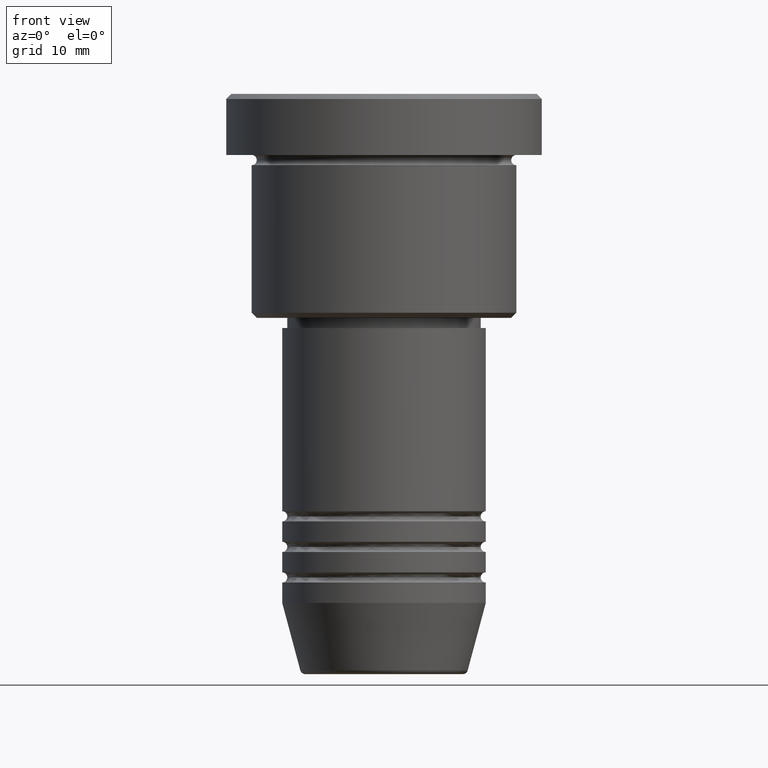
[diagram: clean part render]
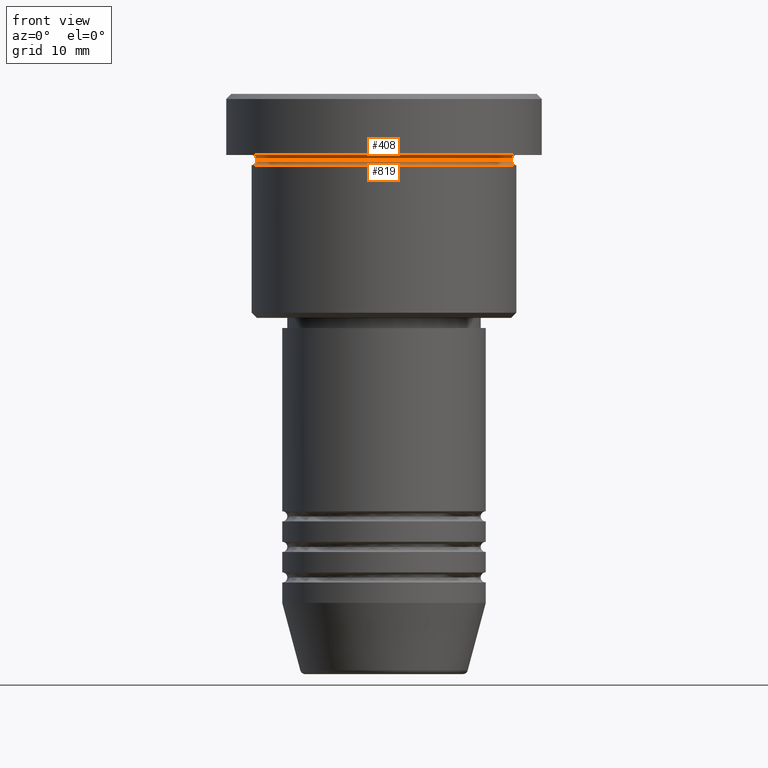
[diagram: same view with one multi-face feature highlighted, each face labeled with its STEP entity id]
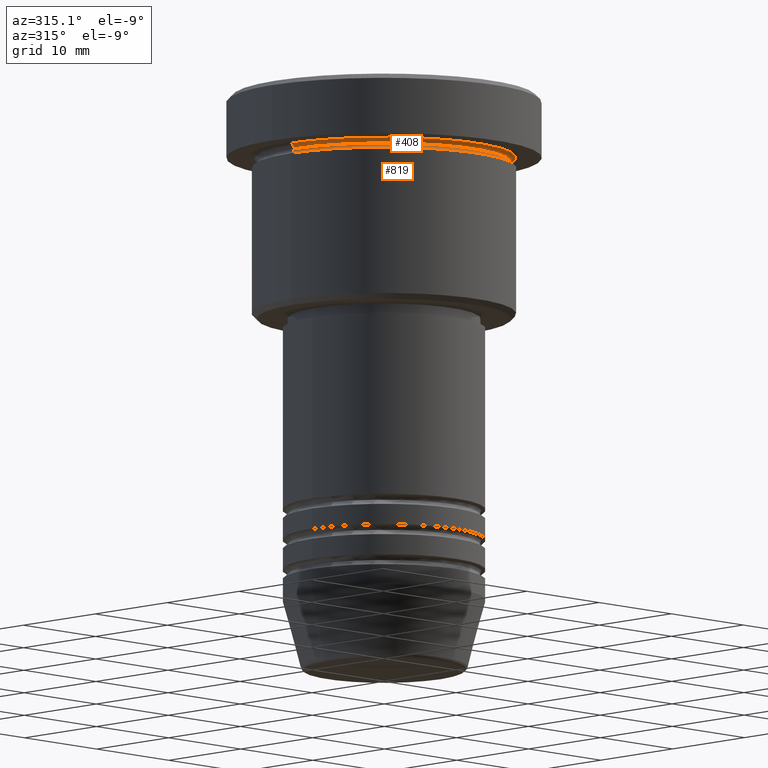
[diagram: same view with one multi-face feature highlighted, each face labeled with its STEP entity id]
A machine part, front view. The highlighted faces form ONE feature: a constant-radius fillet chain: 2 tangent blend faces with common blend radius 0.5 mm. The faces share edges in the B-rep.
A second angle (auxiliary view) of the same feature is appended — it is thin or edge-on in the first view.
Their STEP definitions:
[1] entity #819 (Torus):
#34 = DIRECTION ( 'NONE',  ( -1.000000000000000000, 1.224646799147353454E-16, 0.000000000000000000 ) ) ;
#145 = CARTESIAN_POINT ( 'NONE',  ( 0.000000000000000000, 0.000000000000000000, -6.999999999999995559 ) ) ;
#152 = AXIS2_PLACEMENT_3D ( 'NONE', #856, #833, #34 ) ;
#173 = CIRCLE ( 'NONE', #212, 12.49999999999999822 ) ;
#207 = CARTESIAN_POINT ( 'NONE',  ( 0.000000000000000000, 0.000000000000000000, -6.499999999999995559 ) ) ;
#212 = AXIS2_PLACEMENT_3D ( 'NONE', #755, #578, #477 ) ;
#257 = EDGE_CURVE ( 'NONE', #1182, #793, #1132, .T. ) ;
#292 = AXIS2_PLACEMENT_3D ( 'NONE', #532, #890, #689 ) ;
#323 = AXIS2_PLACEMENT_3D ( 'NONE', #207, #955, #378 ) ;
#336 = DIRECTION ( 'NONE',  ( 1.000000000000000000, 0.000000000000000000, 0.000000000000000000 ) ) ;
#378 = DIRECTION ( 'NONE',  ( 1.000000000000000000, 0.000000000000000000, 0.000000000000000000 ) ) ;
#394 = FACE_OUTER_BOUND ( 'NONE', #405, .T. ) ;
#405 = EDGE_LOOP ( 'NONE', ( #577, #680, #857, #759 ) ) ;
#477 = DIRECTION ( 'NONE',  ( 1.000000000000000000, 0.000000000000000000, 0.000000000000000000 ) ) ;
#505 = CARTESIAN_POINT ( 'NONE',  ( -12.49999999999999822, 1.561424668912875308E-15, -6.499999999999995559 ) ) ;
#525 = CIRCLE ( 'NONE', #1156, 13.00000000000000000 ) ;
#532 = CARTESIAN_POINT ( 'NONE',  ( 13.00000000000000000, 0.000000000000000000, -6.499999999999995559 ) ) ;
#570 = EDGE_CURVE ( 'NONE', #1094, #701, #655, .T. ) ;
#575 = EDGE_CURVE ( 'NONE', #793, #701, #525, .T. ) ;
#577 = ORIENTED_EDGE ( 'NONE', *, *, #799, .F. ) ;
#578 = DIRECTION ( 'NONE',  ( -0.000000000000000000, -0.000000000000000000, 1.000000000000000000 ) ) ;
#655 = CIRCLE ( 'NONE', #292, 0.5000000000000004441 ) ;
#669 = TOROIDAL_SURFACE ( 'NONE', #323, 13.00000000000000000, 0.5000000000000000000 ) ;
#680 = ORIENTED_EDGE ( 'NONE', *, *, #257, .T. ) ;
#689 = DIRECTION ( 'NONE',  ( 0.000000000000000000, 0.000000000000000000, -1.000000000000000000 ) ) ;
#701 = VERTEX_POINT ( 'NONE', #1093 ) ;
#755 = CARTESIAN_POINT ( 'NONE',  ( 0.000000000000000000, 0.000000000000000000, -6.499999999999995559 ) ) ;
#759 = ORIENTED_EDGE ( 'NONE', *, *, #570, .F. ) ;
#793 = VERTEX_POINT ( 'NONE', #951 ) ;
#799 = EDGE_CURVE ( 'NONE', #1182, #1094, #173, .T. ) ;
#819 = ADVANCED_FACE ( 'NONE', ( #394 ), #669, .F. ) ;
#833 = DIRECTION ( 'NONE',  ( 1.224646799147353207E-16, 1.000000000000000000, 0.000000000000000000 ) ) ;
#856 = CARTESIAN_POINT ( 'NONE',  ( -13.00000000000000000, 1.592040838891559095E-15, -6.499999999999995559 ) ) ;
#857 = ORIENTED_EDGE ( 'NONE', *, *, #575, .T. ) ;
#886 = DIRECTION ( 'NONE',  ( -0.000000000000000000, -0.000000000000000000, 1.000000000000000000 ) ) ;
#890 = DIRECTION ( 'NONE',  ( 0.000000000000000000, -1.000000000000000000, 0.000000000000000000 ) ) ;
#951 = CARTESIAN_POINT ( 'NONE',  ( -13.00000000000000000, 1.592040838891559095E-15, -6.999999999999995559 ) ) ;
#955 = DIRECTION ( 'NONE',  ( -0.000000000000000000, -0.000000000000000000, 1.000000000000000000 ) ) ;
#1093 = CARTESIAN_POINT ( 'NONE',  ( 13.00000000000000000, 0.000000000000000000, -6.999999999999995559 ) ) ;
#1094 = VERTEX_POINT ( 'NONE', #1118 ) ;
#1118 = CARTESIAN_POINT ( 'NONE',  ( 12.49999999999999822, 0.000000000000000000, -6.499999999999995559 ) ) ;
#1132 = CIRCLE ( 'NONE', #152, 0.5000000000000004441 ) ;
#1156 = AXIS2_PLACEMENT_3D ( 'NONE', #145, #886, #336 ) ;
#1182 = VERTEX_POINT ( 'NONE', #505 ) ;
[2] entity #408 (Torus):
#56 = ORIENTED_EDGE ( 'NONE', *, *, #799, .T. ) ;
#78 = DIRECTION ( 'NONE',  ( -1.000000000000000000, 0.000000000000000000, 0.000000000000000000 ) ) ;
#83 = ORIENTED_EDGE ( 'NONE', *, *, #357, .F. ) ;
#142 = DIRECTION ( 'NONE',  ( -0.000000000000000000, -0.000000000000000000, 1.000000000000000000 ) ) ;
#143 = ORIENTED_EDGE ( 'NONE', *, *, #427, .T. ) ;
#173 = CIRCLE ( 'NONE', #212, 12.49999999999999822 ) ;
#188 = DIRECTION ( 'NONE',  ( -1.000000000000000000, 0.000000000000000000, 0.000000000000000000 ) ) ;
#195 = CARTESIAN_POINT ( 'NONE',  ( 13.00000000000000000, 1.592040838891559095E-15, -5.999999999999994671 ) ) ;
#211 = TOROIDAL_SURFACE ( 'NONE', #542, 13.00000000000000000, 0.5000000000000000000 ) ;
#212 = AXIS2_PLACEMENT_3D ( 'NONE', #755, #578, #477 ) ;
#271 = CIRCLE ( 'NONE', #911, 0.5000000000000004441 ) ;
#289 = CARTESIAN_POINT ( 'NONE',  ( 0.000000000000000000, 0.000000000000000000, -6.499999999999995559 ) ) ;
#291 = AXIS2_PLACEMENT_3D ( 'NONE', #769, #142, #78 ) ;
#311 = CIRCLE ( 'NONE', #291, 13.00000000000000000 ) ;
#357 = EDGE_CURVE ( 'NONE', #389, #764, #311, .T. ) ;
#360 = DIRECTION ( 'NONE',  ( 0.000000000000000000, 0.000000000000000000, -1.000000000000000000 ) ) ;
#365 = DIRECTION ( 'NONE',  ( -1.000000000000000000, -1.224646799147353454E-16, 0.000000000000000000 ) ) ;
#389 = VERTEX_POINT ( 'NONE', #777 ) ;
#391 = EDGE_LOOP ( 'NONE', ( #56, #143, #83, #912 ) ) ;
#408 = ADVANCED_FACE ( 'NONE', ( #645 ), #211, .F. ) ;
#421 = CARTESIAN_POINT ( 'NONE',  ( -13.00000000000000000, 0.000000000000000000, -6.499999999999995559 ) ) ;
#427 = EDGE_CURVE ( 'NONE', #1094, #764, #880, .T. ) ;
#477 = DIRECTION ( 'NONE',  ( 1.000000000000000000, 0.000000000000000000, 0.000000000000000000 ) ) ;
#481 = AXIS2_PLACEMENT_3D ( 'NONE', #649, #919, #365 ) ;
#505 = CARTESIAN_POINT ( 'NONE',  ( -12.49999999999999822, 1.561424668912875308E-15, -6.499999999999995559 ) ) ;
#542 = AXIS2_PLACEMENT_3D ( 'NONE', #289, #360, #188 ) ;
#578 = DIRECTION ( 'NONE',  ( -0.000000000000000000, -0.000000000000000000, 1.000000000000000000 ) ) ;
#645 = FACE_OUTER_BOUND ( 'NONE', #391, .T. ) ;
#649 = CARTESIAN_POINT ( 'NONE',  ( 13.00000000000000000, 1.592040838891559095E-15, -6.499999999999995559 ) ) ;
#755 = CARTESIAN_POINT ( 'NONE',  ( 0.000000000000000000, 0.000000000000000000, -6.499999999999995559 ) ) ;
#764 = VERTEX_POINT ( 'NONE', #195 ) ;
#769 = CARTESIAN_POINT ( 'NONE',  ( 0.000000000000000000, 0.000000000000000000, -5.999999999999995559 ) ) ;
#777 = CARTESIAN_POINT ( 'NONE',  ( -13.00000000000000000, 0.000000000000000000, -5.999999999999994671 ) ) ;
#796 = DIRECTION ( 'NONE',  ( 0.000000000000000000, 0.000000000000000000, -1.000000000000000000 ) ) ;
#799 = EDGE_CURVE ( 'NONE', #1182, #1094, #173, .T. ) ;
#880 = CIRCLE ( 'NONE', #481, 0.5000000000000004441 ) ;
#911 = AXIS2_PLACEMENT_3D ( 'NONE', #421, #953, #796 ) ;
#912 = ORIENTED_EDGE ( 'NONE', *, *, #1178, .F. ) ;
#919 = DIRECTION ( 'NONE',  ( -1.224646799147353207E-16, 1.000000000000000000, 0.000000000000000000 ) ) ;
#953 = DIRECTION ( 'NONE',  ( -0.000000000000000000, -1.000000000000000000, -0.000000000000000000 ) ) ;
#1094 = VERTEX_POINT ( 'NONE', #1118 ) ;
#1118 = CARTESIAN_POINT ( 'NONE',  ( 12.49999999999999822, 0.000000000000000000, -6.499999999999995559 ) ) ;
#1178 = EDGE_CURVE ( 'NONE', #1182, #389, #271, .T. ) ;
#1182 = VERTEX_POINT ( 'NONE', #505 ) ;